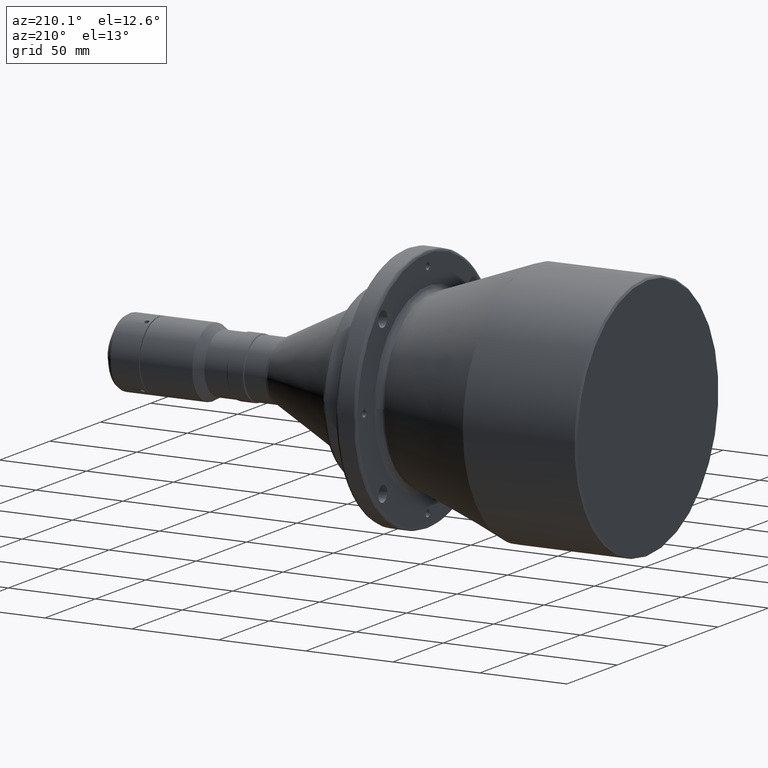
[diagram: clean part render]
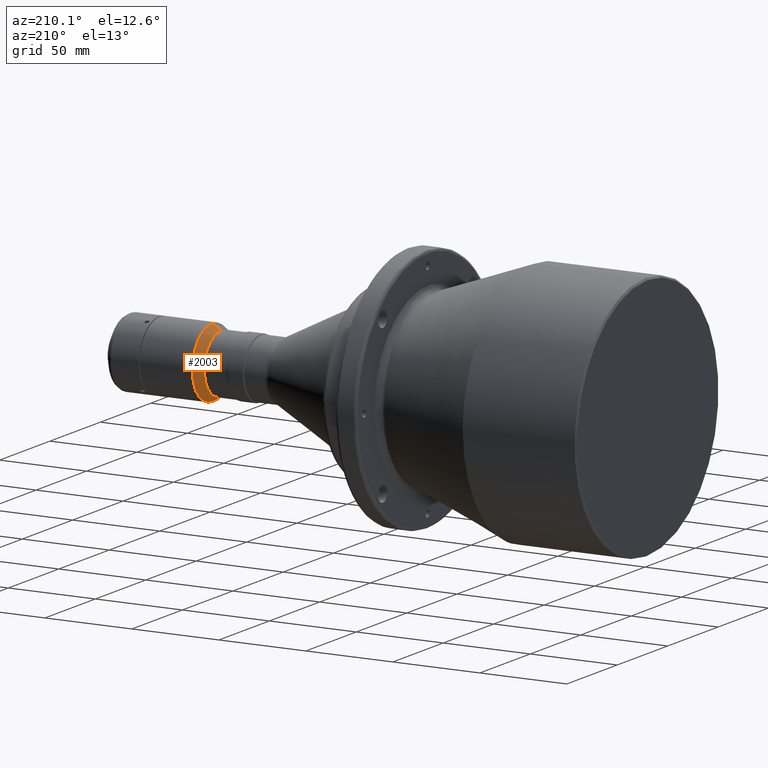
[diagram: same view with one face highlighted and labeled with its STEP entity id]
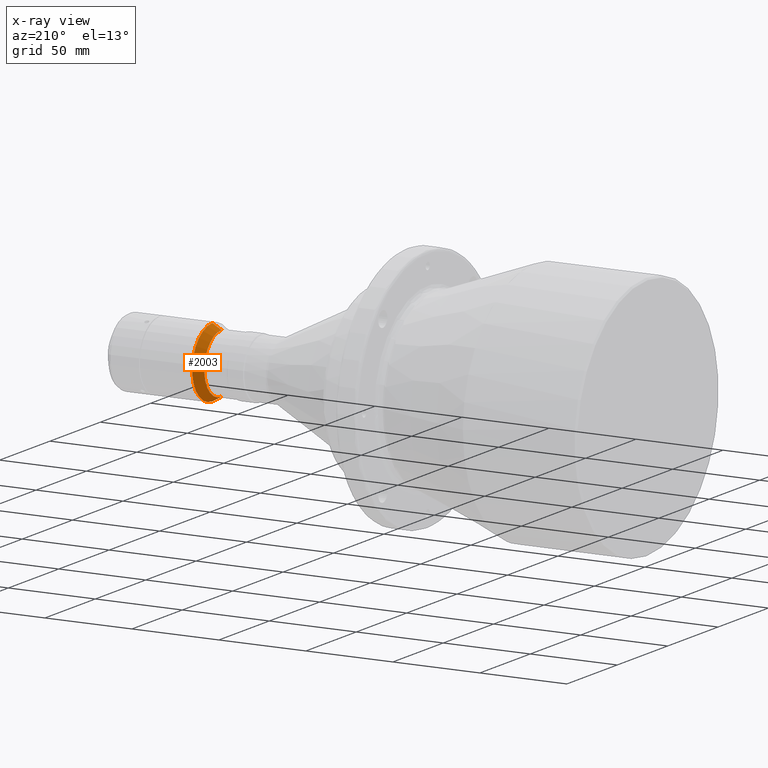
[diagram: x-ray of the same camera — body ghosted, the highlighted face saturated]
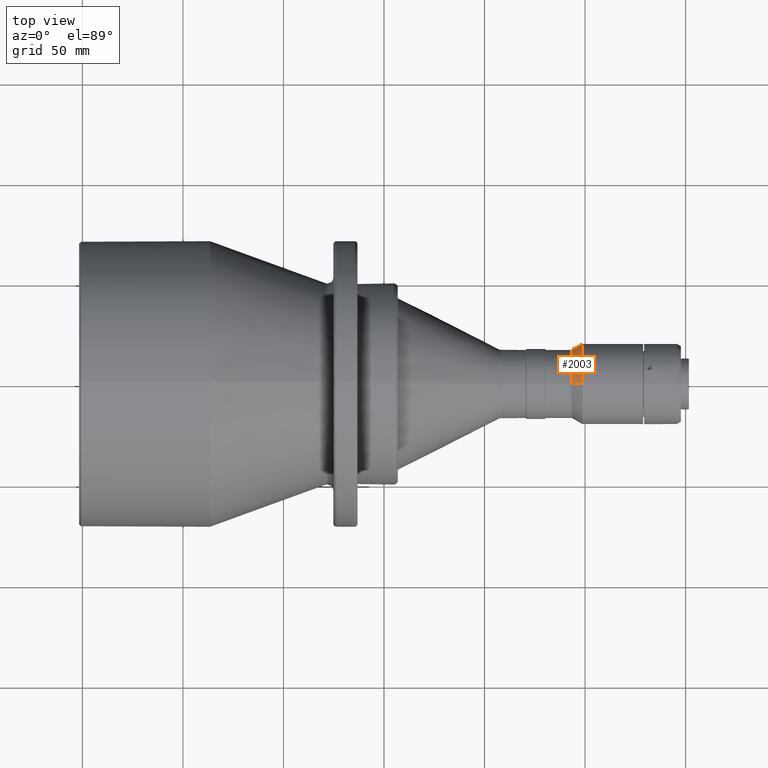
[diagram: same view with one face highlighted and labeled with its STEP entity id]
A machine part, auxiliary view. The second image highlights one B-rep face of the part: STEP entity #2003.
The next image is the same camera in x-ray: the body ghosted, the highlighted face saturated — about 0% of this face is hidden behind the body in this view.
A second angle (top view) of the same face is appended — the face is thin or edge-on in the first view.
In plain terms, the highlighted conical surface has half-angle 30 deg.
Its self-contained STEP definition (entity closure, byte-faithful):
#131 = AXIS2_PLACEMENT_3D ( 'NONE', #1803, #810, #841 ) ;
#203 = VERTEX_POINT ( 'NONE', #3595 ) ;
#210 = AXIS2_PLACEMENT_3D ( 'NONE', #371, #3787, #3126 ) ;
#371 = CARTESIAN_POINT ( 'NONE',  ( 93.45384757699999100, 0.0000000000000000000, 0.0000000000000000000 ) ) ;
#468 = AXIS2_PLACEMENT_3D ( 'NONE', #3956, #1283, #1654 ) ;
#641 = FACE_OUTER_BOUND ( 'NONE', #1951, .T. ) ;
#810 = DIRECTION ( 'NONE',  ( 1.000000000000000000, 0.0000000000000000000, 0.0000000000000000000 ) ) ;
#841 = DIRECTION ( 'NONE',  ( -1.387778780781445700E-015, 1.000000000000000000, 0.0000000000000000000 ) ) ;
#1205 = VERTEX_POINT ( 'NONE', #1260 ) ;
#1260 = CARTESIAN_POINT ( 'NONE',  ( 98.65000000000002000, 2.449293598294706500E-015, 20.00000000000000000 ) ) ;
#1283 = DIRECTION ( 'NONE',  ( 1.000000000000000000, 0.0000000000000000000, 0.0000000000000000000 ) ) ;
#1294 = EDGE_CURVE ( 'NONE', #203, #1205, #2637, .T. ) ;
#1357 = EDGE_CURVE ( 'NONE', #2593, #203, #3436, .T. ) ;
#1441 = CARTESIAN_POINT ( 'NONE',  ( 98.65000000000002000, 0.0000000000000000000, -20.00000000000000000 ) ) ;
#1654 = DIRECTION ( 'NONE',  ( 0.0000000000000000000, 1.000000000000000000, 0.0000000000000000000 ) ) ;
#1677 = ORIENTED_EDGE ( 'NONE', *, *, #3600, .F. ) ;
#1696 = CARTESIAN_POINT ( 'NONE',  ( 93.45384757699999100, 0.0000000000000000000, -17.00000000000000000 ) ) ;
#1745 = CONICAL_SURFACE ( 'NONE', #210, 17.00000000000000000, 0.5235987755738521500 ) ;
#1803 = CARTESIAN_POINT ( 'NONE',  ( 98.65000000000002000, 0.0000000000000000000, 0.0000000000000000000 ) ) ;
#1928 = DIRECTION ( 'NONE',  ( 0.8660254037966620400, 6.123233995477489600E-017, 0.4999999999788284400 ) ) ;
#1951 = EDGE_LOOP ( 'NONE', ( #3950, #2775, #1677, #2017 ) ) ;
#1972 = VERTEX_POINT ( 'NONE', #1441 ) ;
#2003 = ADVANCED_FACE ( 'NONE', ( #641 ), #1745, .T. ) ;
#2017 = ORIENTED_EDGE ( 'NONE', *, *, #3237, .F. ) ;
#2215 = VECTOR ( 'NONE', #4280, 1000.000000000000100 ) ;
#2236 = CARTESIAN_POINT ( 'NONE',  ( 93.45384757699999100, 0.0000000000000000000, -17.00000000000000000 ) ) ;
#2593 = VERTEX_POINT ( 'NONE', #1696 ) ;
#2635 = CARTESIAN_POINT ( 'NONE',  ( 93.45384757699999100, 2.081899558550500300E-015, 17.00000000000000000 ) ) ;
#2637 = LINE ( 'NONE', #2635, #4318 ) ;
#2775 = ORIENTED_EDGE ( 'NONE', *, *, #1294, .T. ) ;
#3126 = DIRECTION ( 'NONE',  ( 0.0000000000000000000, 0.0000000000000000000, -1.000000000000000000 ) ) ;
#3237 = EDGE_CURVE ( 'NONE', #2593, #1972, #3426, .T. ) ;
#3426 = LINE ( 'NONE', #2236, #2215 ) ;
#3436 = CIRCLE ( 'NONE', #468, 17.00000000000000000 ) ;
#3595 = CARTESIAN_POINT ( 'NONE',  ( 93.45384757699999100, 2.265596578422603400E-015, 17.00000000000000000 ) ) ;
#3600 = EDGE_CURVE ( 'NONE', #1972, #1205, #4304, .T. ) ;
#3787 = DIRECTION ( 'NONE',  ( 1.000000000000000000, 0.0000000000000000000, -0.0000000000000000000 ) ) ;
#3950 = ORIENTED_EDGE ( 'NONE', *, *, #1357, .T. ) ;
#3956 = CARTESIAN_POINT ( 'NONE',  ( 93.45384757699999100, 0.0000000000000000000, 0.0000000000000000000 ) ) ;
#4280 = DIRECTION ( 'NONE',  ( 0.8660254037966620400, 0.0000000000000000000, -0.4999999999788284400 ) ) ;
#4304 = CIRCLE ( 'NONE', #131, 20.00000000000000000 ) ;
#4318 = VECTOR ( 'NONE', #1928, 1000.000000000000100 ) ;